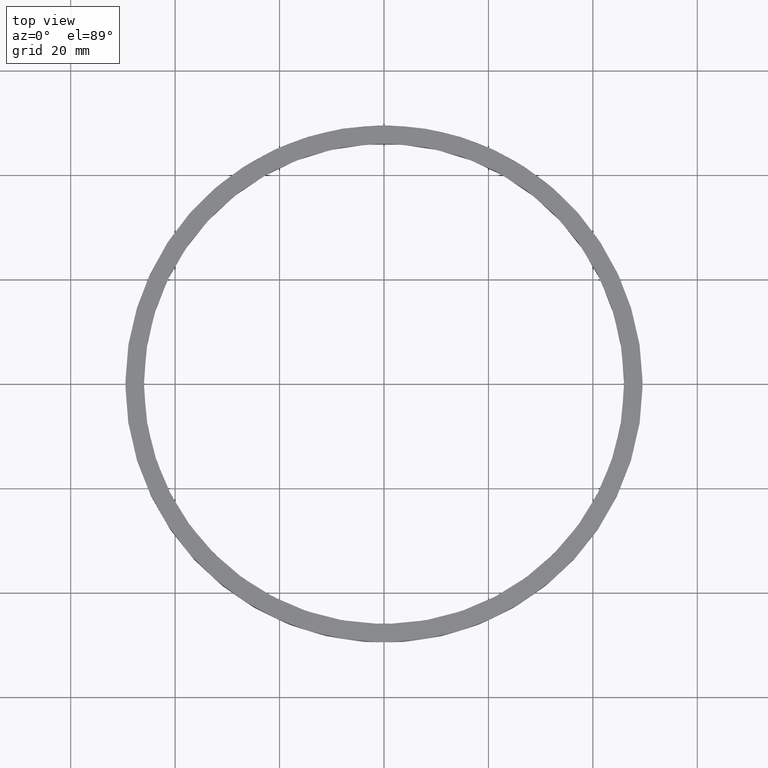
[diagram: clean part render]
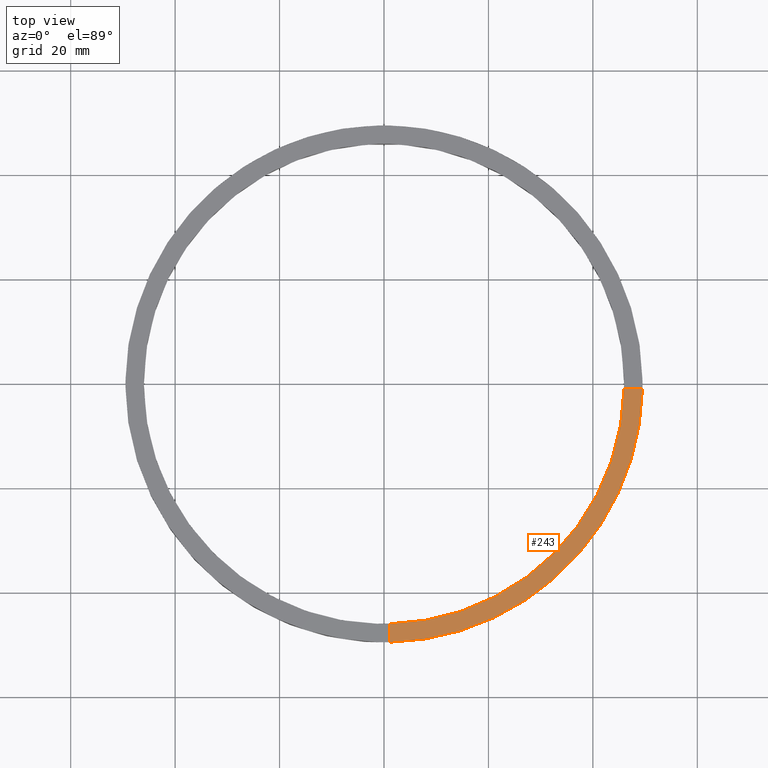
[diagram: same view with one face highlighted and labeled with its STEP entity id]
A machine part, top view. The second image highlights one B-rep face of the part: STEP entity #243.
In plain terms, the highlighted planar face has unit normal (0, 0, 1).
Its self-contained STEP definition (entity closure, byte-faithful):
#21 = ORIENTED_EDGE ( 'NONE', *, *, #625, .F. ) ;
#36 = CIRCLE ( 'NONE', #434, 46.00000000000000000 ) ;
#41 = LINE ( 'NONE', #610, #576 ) ;
#64 = CARTESIAN_POINT ( 'NONE',  ( 0.9999999999998430145, -49.48989795907849043, 4.500000000000000000 ) ) ;
#111 = AXIS2_PLACEMENT_3D ( 'NONE', #627, #179, #379 ) ;
#166 = VERTEX_POINT ( 'NONE', #199 ) ;
#167 = DIRECTION ( 'NONE',  ( 1.000000000000000000, 0.000000000000000000, -0.000000000000000000 ) ) ;
#179 = DIRECTION ( 'NONE',  ( 0.000000000000000000, 0.000000000000000000, 1.000000000000000000 ) ) ;
#187 = EDGE_LOOP ( 'NONE', ( #21, #760, #518, #663 ) ) ;
#199 = CARTESIAN_POINT ( 'NONE',  ( 0.9999999999998425704, -45.98912915026767934, 4.500000000000000000 ) ) ;
#225 = DIRECTION ( 'NONE',  ( 0.000000000000000000, 0.000000000000000000, 1.000000000000000000 ) ) ;
#228 = CARTESIAN_POINT ( 'NONE',  ( 0.000000000000000000, 0.000000000000000000, 4.500000000000000000 ) ) ;
#239 = CARTESIAN_POINT ( 'NONE',  ( 0.000000000000000000, 0.000000000000000000, 4.500000000000000000 ) ) ;
#243 = ADVANCED_FACE ( 'NONE', ( #651 ), #318, .T. ) ;
#268 = VERTEX_POINT ( 'NONE', #471 ) ;
#269 = VERTEX_POINT ( 'NONE', #64 ) ;
#292 = DIRECTION ( 'NONE',  ( -1.301042606982605074E-16, 1.000000000000000000, -0.000000000000000000 ) ) ;
#298 = CARTESIAN_POINT ( 'NONE',  ( 39.50000000000000000, -1.000000000000155875, 4.500000000000000000 ) ) ;
#318 = PLANE ( 'NONE',  #628 ) ;
#379 = DIRECTION ( 'NONE',  ( 1.000000000000000000, 0.000000000000000000, 0.000000000000000000 ) ) ;
#434 = AXIS2_PLACEMENT_3D ( 'NONE', #228, #647, #604 ) ;
#471 = CARTESIAN_POINT ( 'NONE',  ( 45.98912915026767223, -1.000000000000155431, 4.500000000000000000 ) ) ;
#476 = DIRECTION ( 'NONE',  ( 1.000000000000000000, 6.505213034913025371E-17, 0.000000000000000000 ) ) ;
#488 = CIRCLE ( 'NONE', #111, 49.50000000000000711 ) ;
#518 = ORIENTED_EDGE ( 'NONE', *, *, #643, .F. ) ;
#551 = EDGE_CURVE ( 'NONE', #269, #762, #488, .T. ) ;
#576 = VECTOR ( 'NONE', #292, 1000.000000000000000 ) ;
#604 = DIRECTION ( 'NONE',  ( 1.000000000000000000, 0.000000000000000000, 0.000000000000000000 ) ) ;
#610 = CARTESIAN_POINT ( 'NONE',  ( 0.9999999999998416822, -39.50000000000018474, 4.500000000000000000 ) ) ;
#625 = EDGE_CURVE ( 'NONE', #268, #762, #738, .T. ) ;
#627 = CARTESIAN_POINT ( 'NONE',  ( 0.000000000000000000, 0.000000000000000000, 4.500000000000000000 ) ) ;
#628 = AXIS2_PLACEMENT_3D ( 'NONE', #239, #225, #167 ) ;
#643 = EDGE_CURVE ( 'NONE', #269, #166, #41, .T. ) ;
#647 = DIRECTION ( 'NONE',  ( 0.000000000000000000, 0.000000000000000000, 1.000000000000000000 ) ) ;
#651 = FACE_OUTER_BOUND ( 'NONE', #187, .T. ) ;
#663 = ORIENTED_EDGE ( 'NONE', *, *, #551, .T. ) ;
#679 = EDGE_CURVE ( 'NONE', #166, #268, #36, .T. ) ;
#713 = VECTOR ( 'NONE', #476, 1000.000000000000000 ) ;
#738 = LINE ( 'NONE', #298, #713 ) ;
#743 = CARTESIAN_POINT ( 'NONE',  ( 49.48989795907849043, -1.000000000000155209, 4.500000000000000000 ) ) ;
#760 = ORIENTED_EDGE ( 'NONE', *, *, #679, .F. ) ;
#762 = VERTEX_POINT ( 'NONE', #743 ) ;